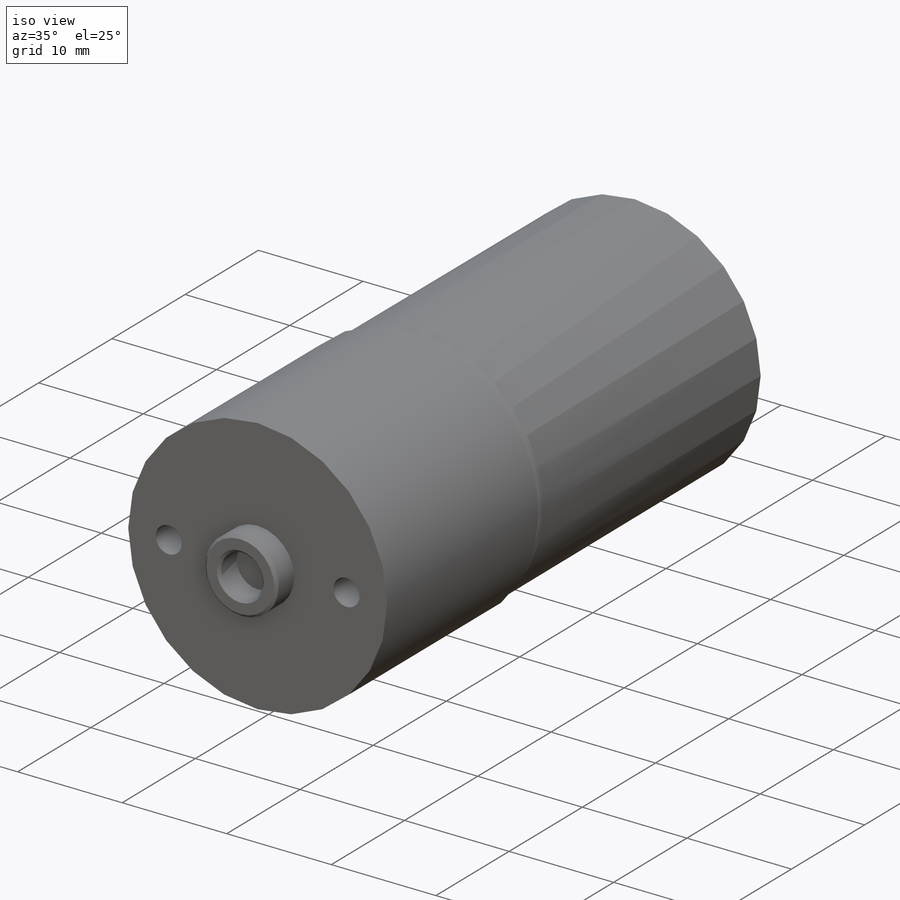
[diagram: iso view]
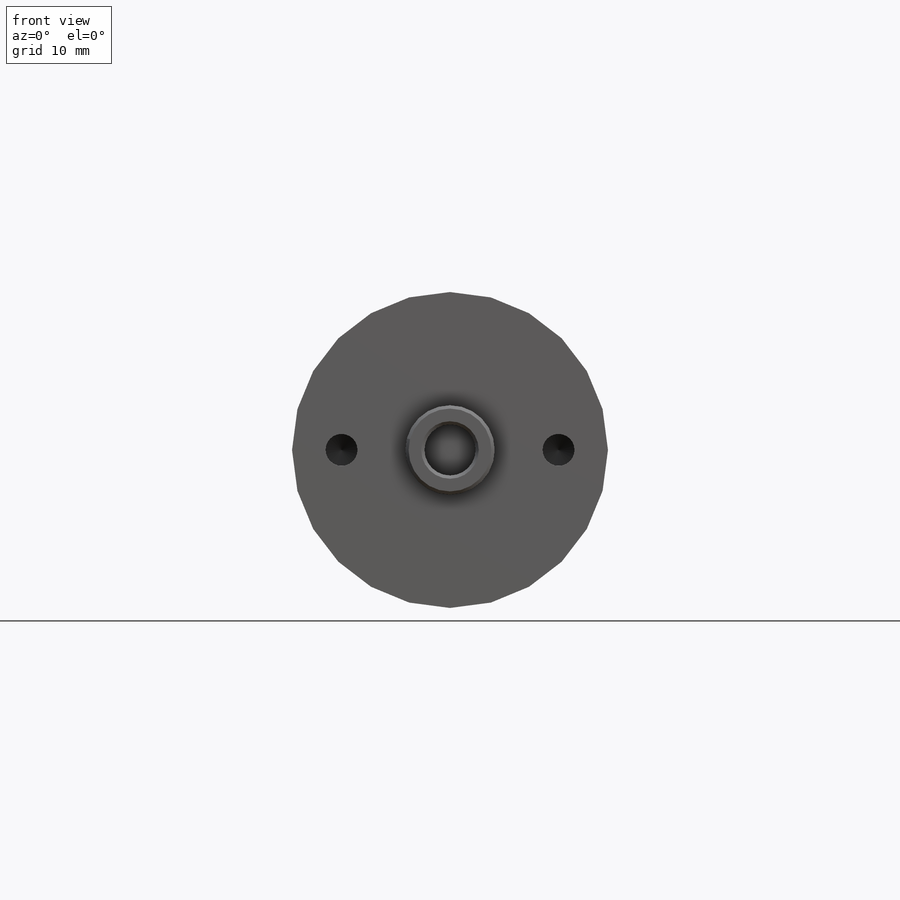
[diagram: front view]
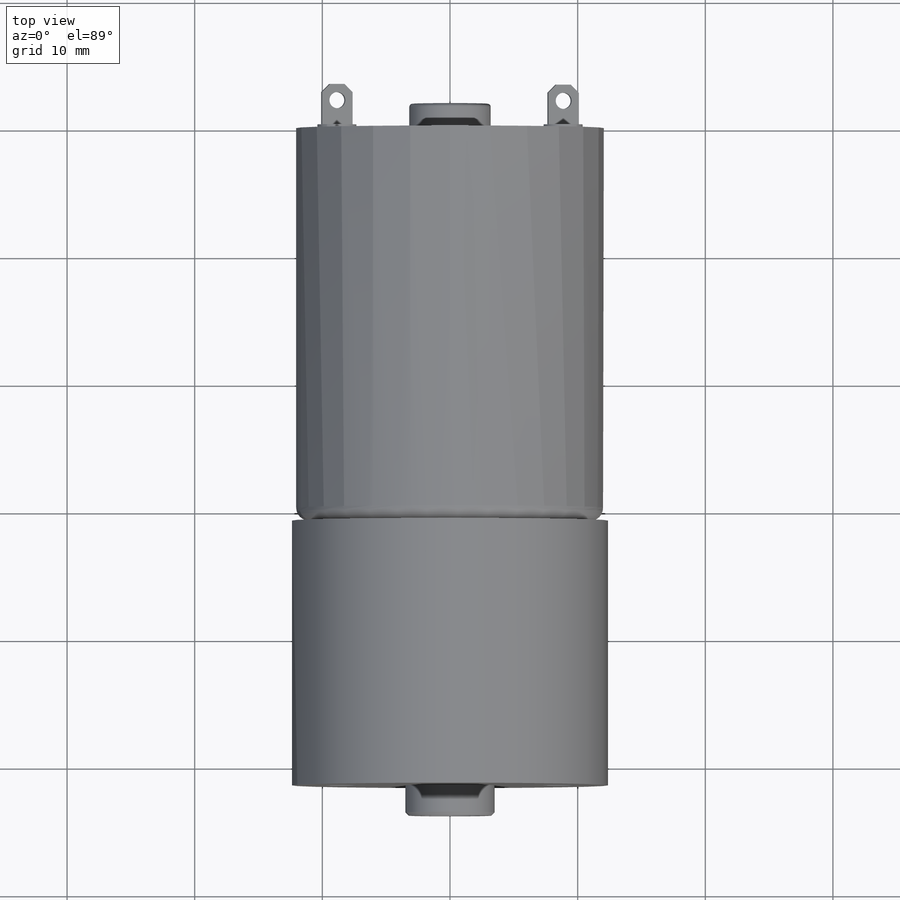
[diagram: top view]
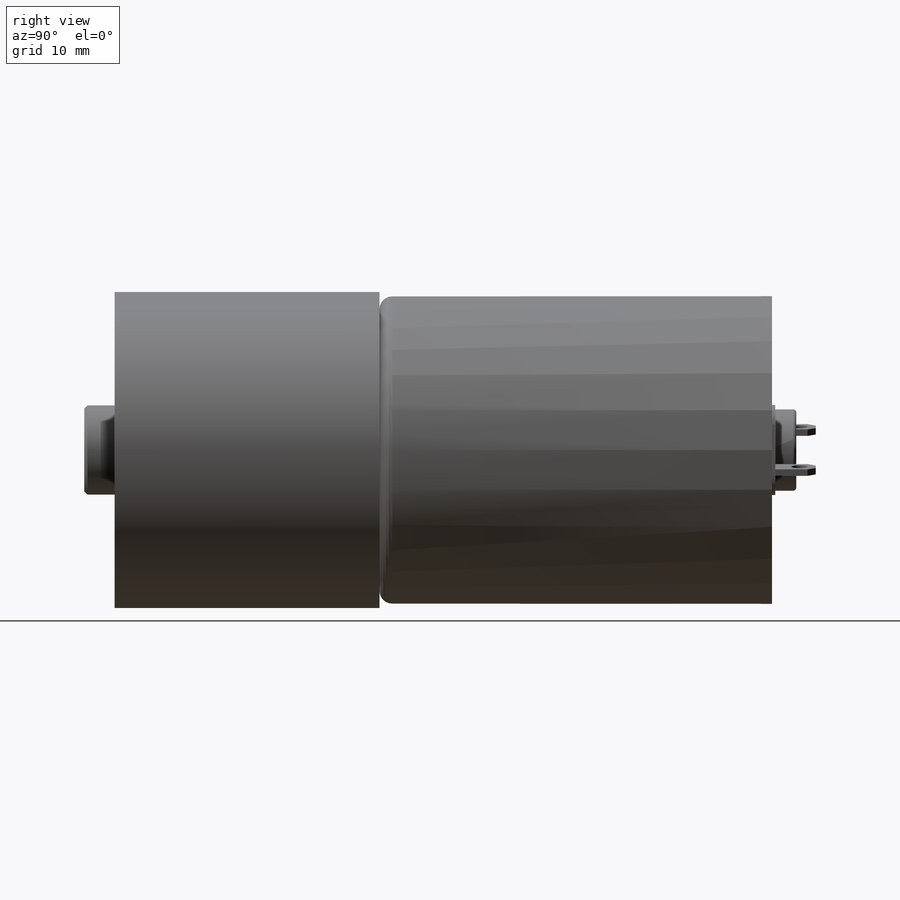
[diagram: right view]
SOLIDWORKS PART (.sldprt)
format: sldprt  version: not decoded by parser v0  size: 568,832 bytes
history: native  units: mm
features: sketch x14, extrude x9, cut_extrude x3, fillet x2, chamfer x2, thread x2, material x1, hole x1 (+13 scaffold rows collapsed)
feature tree (47):
  scaffold x13  (default folders/planes/origin — collapsed)
  material  "Material <not specified>"
  sketch  "Sketch1"  dims[c1.D3=~8.307211mm c1.D1=15.367mm c1.D2=13.462mm c2.D3=20.193mm]
  extrude  "Boss-Extrude1"  Depth=30.75mm
  fillet  "Fillet2"  Radius=1mm
  sketch  "Sketch2"  dims[D1=24.75mm]
  extrude  "Boss-Extrude2"  Depth=20.75mm
  sketch  "Sketch3"  dims[D1=7.0mm D2=4.0mm]
  extrude  "Boss-Extrude3"  Depth=2.375mm
  chamfer  "Chamfer1"  Distance=0.254mm Angle=45deg
  hole  "M3x0.5 Tapped Hole1"  Diameter=2.5mm Depth=7.5mm
  sketch  "Sketch5"  dims[D1=17.0mm]
  sketch  "Sketch6"  dims[hole-wizard template sketch: 50 standard entries collapsed; hole parameters above]
  thread  "Hole Thread1"  Diameter=6mm  [1 undecoded]
  thread  "Hole Thread2"  Diameter=6mm  [1 undecoded]
  sketch  "Sketch7"  dims[D1=0.0mm D2=0.25mm]
  cut_extrude  "Cut-Extrude1"  Depth=0.762mm
  sketch  "Sketch8"  dims[D1=9.0mm]
  extrude  "Boss-Extrude4"  Depth=0.254mm
  sketch  "Sketch9"  dims[D1=6.375mm]
  extrude  "Boss-Extrude5"  Depth=2.413mm
  fillet  "Fillet1"  Radius=0.254mm
  sketch  "Sketch10"  dims[c1.D3=3.048mm c1.D1=~13.731568mm c2.D1=10.0deg c2.D2=18.0mm]
  extrude  "Boss-Extrude6"  Depth=1.016mm
  sketch  "Sketch11"  dims[D1=2.413mm D2=0.508mm D3=0.508mm D4=2.413mm]
  extrude  "Boss-Extrude7"  Depth=3.175mm
  sketch  "Sketch12"  dims[D1=1.27mm D2=1.905mm]
  cut_extrude  "Cut-Extrude2"  Depth=3.175mm
  chamfer  "Chamfer2"  Distance=0.635mm Angle=45deg
  sketch  "Sketch13"  dims[D1=4.0mm]
  extrude  "Boss-Extrude8"  [1 undecoded]
  sketch  "Sketch14"  dims[c1.D3=9.5mm c2.D3=60.0deg c2.D4=9.5mm c3.D4=30.0deg c3.D1=0.25mm c3.D2=0.25mm]
  cut_extrude  "Cut-Extrude3"  Depth=3mm
  sketch  "Sketch15"  dims[c1.D4=2.0mm c1.D1=20.0mm c1.D2=20.0mm c2.D2=55.0deg c2.D3=11.8mm c3.D3=55.0deg]
  extrude  "Boss-Extrude9"  Depth=0.5mm
decode coverage: 32 of 33 modeling features carry decoded parameters
note: ~ marks probable driven/reference dimensions
note: 3 parameter values undecoded
note: suppression state not decoded; provenance and decode notes live in map.json
